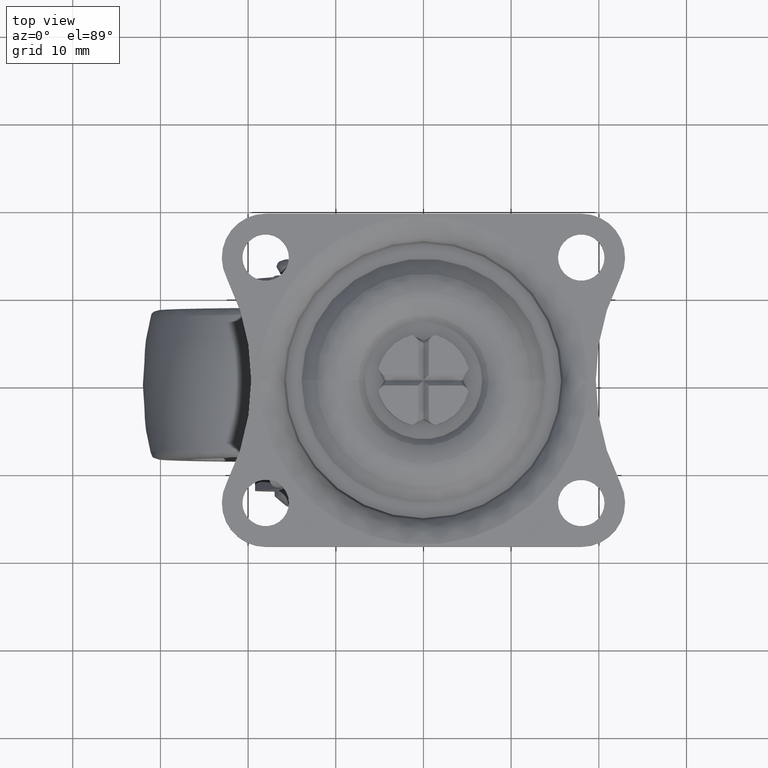
[diagram: clean part render]
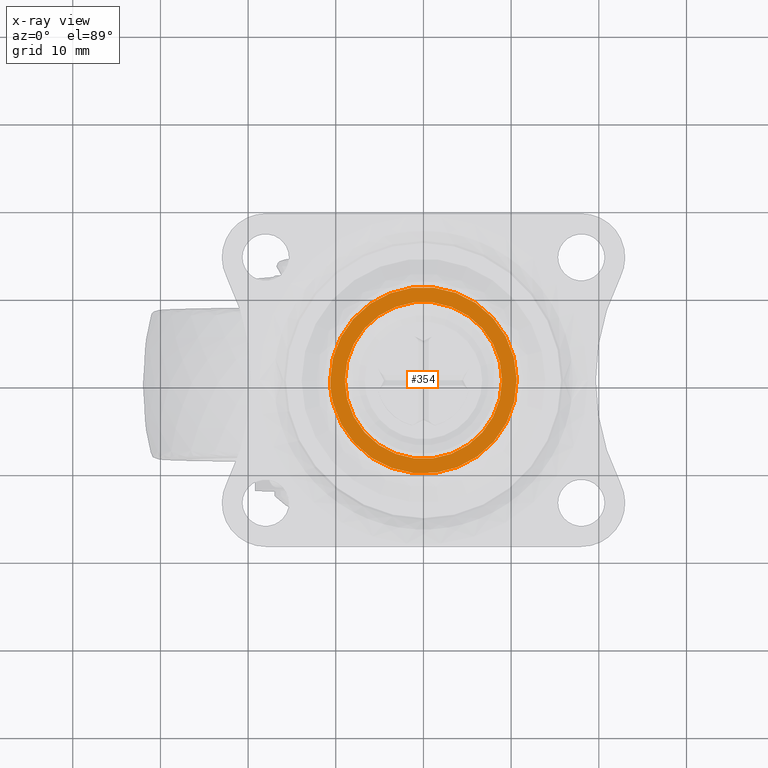
[diagram: x-ray — body ghosted, one internal face saturated and labeled with its STEP entity id]
A machine part, top view, then the same camera in x-ray: the body is ghosted and one INTERNAL B-rep face — a face not visible from any outside direction — is saturated and labeled: STEP entity #354.
In plain terms, the highlighted planar face has unit normal (0, 0, -1).
Its self-contained STEP definition (entity closure, byte-faithful):
#354=ADVANCED_FACE('',(#1810,#1811),#1809,.T.);
#1809=PLANE('',#4715);
#1810=FACE_OUTER_BOUND('',#4716,.T.);
#1811=FACE_BOUND('',#4717,.T.);
#4712=CARTESIAN_POINT('',(-1.38284344903E+01,2.21091241166E+01,-1.60000000000E+00));
#4713=DIRECTION('',(0.00000000000E+00,0.00000000000E+00,-1.00000000000E+00));
#4714=DIRECTION('',(1.00000000000E+00,0.00000000000E+00,0.00000000000E+00));
#4715=AXIS2_PLACEMENT_3D('',#4712,#4713,#4714);
#4716=EDGE_LOOP('',(#6331,#6332,#6333));
#4717=EDGE_LOOP('',(#6334,#6335));
#6331=ORIENTED_EDGE('',*,*,#7202,.T.);
#6332=ORIENTED_EDGE('',*,*,#7203,.T.);
#6333=ORIENTED_EDGE('',*,*,#7204,.T.);
#6334=ORIENTED_EDGE('',*,*,#7205,.F.);
#6335=ORIENTED_EDGE('',*,*,#7206,.F.);
#7202=EDGE_CURVE('',#9825,#9826,#9827,.T.);
#7203=EDGE_CURVE('',#9826,#9833,#9834,.T.);
#7204=EDGE_CURVE('',#9833,#9825,#9840,.T.);
#7205=EDGE_CURVE('',#9846,#9847,#9848,.T.);
#7206=EDGE_CURVE('',#9847,#9846,#9854,.T.);
#9825=VERTEX_POINT('',#13395);
#9826=VERTEX_POINT('',#13396);
#9827=CIRCLE('',#13400,1.06372573002E+01);
#9833=VERTEX_POINT('',#13401);
#9834=CIRCLE('',#13405,1.06372573002E+01);
#9840=CIRCLE('',#13409,1.06372573002E+01);
#9846=VERTEX_POINT('',#13410);
#9847=VERTEX_POINT('',#13411);
#9848=CIRCLE('',#13415,8.96274169980E+00);
#9854=CIRCLE('',#13419,8.96274169980E+00);
#13395=CARTESIAN_POINT('',(-1.06372573002E+01,0.00000000000E+00,-1.60000000000E+00));
#13396=CARTESIAN_POINT('',(1.02984355560E+01,2.66335652314E+00,-1.60000000000E+00));
#13397=CARTESIAN_POINT('',(0.00000000000E+00,0.00000000000E+00,-1.60000000000E+00));
#13398=DIRECTION('',(-0.00000000000E+00,0.00000000000E+00,-1.00000000000E+00));
#13399=DIRECTION('',(-1.00000000000E+00,-1.22460635382E-16,0.00000000000E+00));
#13400=AXIS2_PLACEMENT_3D('',#13397,#13398,#13399);
#13401=CARTESIAN_POINT('',(-1.02978210775E+01,-2.66573140552E+00,-1.60000000000E+00));
#13402=CARTESIAN_POINT('',(0.00000000000E+00,0.00000000000E+00,-1.60000000000E+00));
#13403=DIRECTION('',(-0.00000000000E+00,0.00000000000E+00,-1.00000000000E+00));
#13404=DIRECTION('',(-1.00000000000E+00,-1.22460635382E-16,0.00000000000E+00));
#13405=AXIS2_PLACEMENT_3D('',#13402,#13403,#13404);
#13406=CARTESIAN_POINT('',(0.00000000000E+00,0.00000000000E+00,-1.60000000000E+00));
#13407=DIRECTION('',(-0.00000000000E+00,0.00000000000E+00,-1.00000000000E+00));
#13408=DIRECTION('',(-1.00000000000E+00,-1.22460635382E-16,0.00000000000E+00));
#13409=AXIS2_PLACEMENT_3D('',#13406,#13407,#13408);
#13410=CARTESIAN_POINT('',(8.96274169980E+00,-6.21724893790E-15,-1.60000000000E+00));
#13411=CARTESIAN_POINT('',(-8.96274169980E+00,0.00000000000E+00,-1.60000000000E+00));
#13412=CARTESIAN_POINT('',(0.00000000000E+00,0.00000000000E+00,-1.60000000000E+00));
#13413=DIRECTION('',(-0.00000000000E+00,0.00000000000E+00,-1.00000000000E+00));
#13414=DIRECTION('',(-1.00000000000E+00,-1.22460635382E-16,0.00000000000E+00));
#13415=AXIS2_PLACEMENT_3D('',#13412,#13413,#13414);
#13416=CARTESIAN_POINT('',(0.00000000000E+00,0.00000000000E+00,-1.60000000000E+00));
#13417=DIRECTION('',(-0.00000000000E+00,0.00000000000E+00,-1.00000000000E+00));
#13418=DIRECTION('',(-1.00000000000E+00,-1.22460635382E-16,0.00000000000E+00));
#13419=AXIS2_PLACEMENT_3D('',#13416,#13417,#13418);